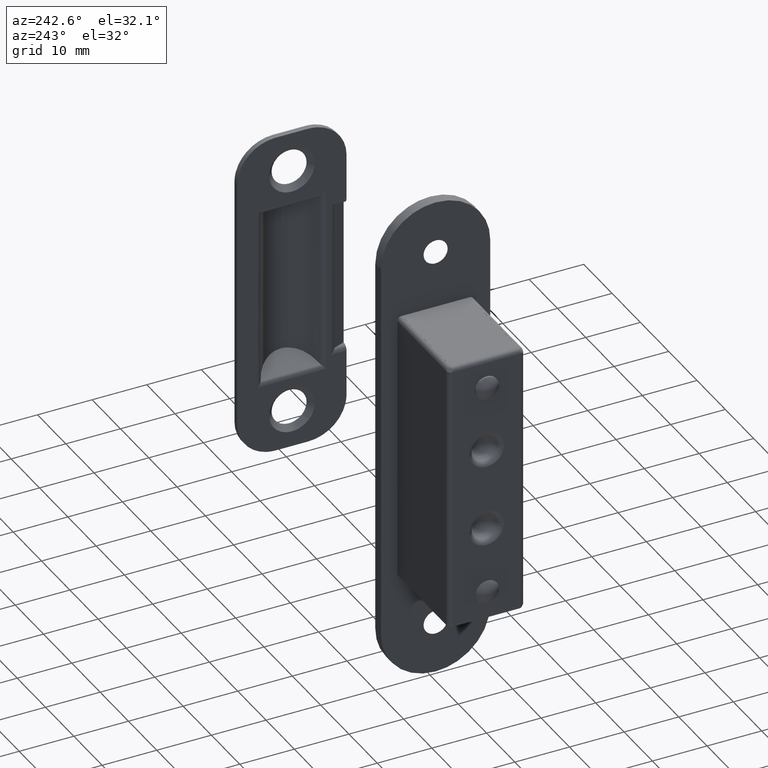
[diagram: clean part render]
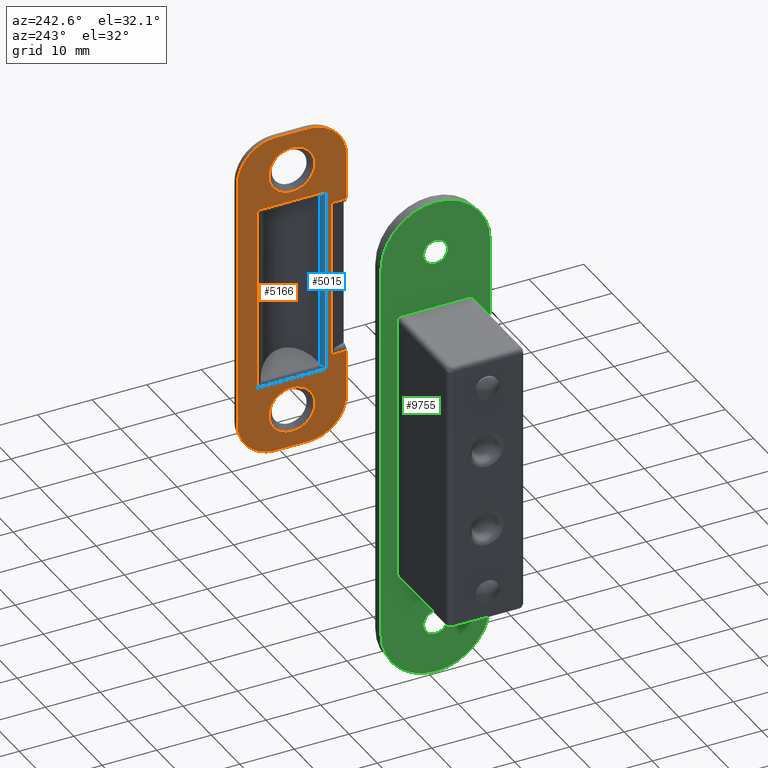
[diagram: same view with three faces highlighted in distinct colors, each labeled with its STEP entity id]
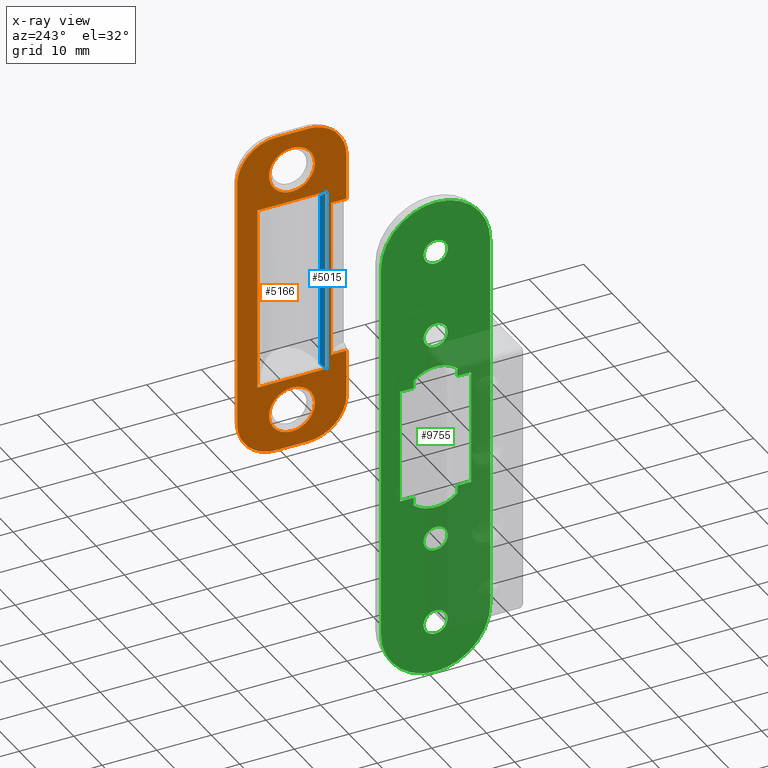
[diagram: x-ray of the same camera — body ghosted, the three highlighted faces saturated]
A machine part, auxiliary view with three faces highlighted in distinct colors.
The next image is the same camera in x-ray (body ghosted, the three faces saturated) — at least one of them is partly hidden behind the body in this view.
Their STEP definitions:

[orange] entity #5166 — the highlighted face is a freeform B-spline surface patch.
#4289=CARTESIAN_POINT('',(48.745713657531802,-4.200001150436667,-23.000000812040430));
#4290=VERTEX_POINT('',#4289);
#4291=CARTESIAN_POINT('',(48.745713530252971,-3.096566388486624,-25.837478975063540));
#4292=VERTEX_POINT('',#4291);
#4293=CARTESIAN_POINT('',(48.745713657531802,-4.200001150436667,-23.000000812040430));
#4294=CARTESIAN_POINT('',(48.745713639334511,-4.200173369354194,-23.405682132487900));
#4295=CARTESIAN_POINT('',(48.745713610954454,-4.107548693115812,-24.038367016498839));
#4296=CARTESIAN_POINT('',(48.745713567394489,-3.729958294057039,-25.009468982688610));
#4297=CARTESIAN_POINT('',(48.745713543664550,-3.370749172032806,-25.538490330784711));
#4298=CARTESIAN_POINT('',(48.745713530252971,-3.096566388486624,-25.837478975063540));
#4299=B_SPLINE_CURVE_WITH_KNOTS('',3,(#4293,#4294,#4295,#4296,#4297,#4298),.UNSPECIFIED.,.F.,.U.,(4,1,1,4),(0.000000028381102,1.216967061449153,1.898462237563208,3.115429270614877),.UNSPECIFIED.);
#4300=EDGE_CURVE('',#4290,#4292,#4299,.T.);
#4302=CARTESIAN_POINT('',(48.745713657531802,-0.000000940356988,-18.800000000000001));
#4303=VERTEX_POINT('',#4302);
#4304=CARTESIAN_POINT('',(48.745713657531802,-0.000000940356988,-18.800000000000001));
#4305=CARTESIAN_POINT('',(48.745713657531802,-0.429551941755170,-18.799772588515729));
#4306=CARTESIAN_POINT('',(48.745713657531837,-1.082253920309024,-18.901077406199182));
#4307=CARTESIAN_POINT('',(48.745713657531773,-1.976238161579904,-19.264973814131931));
#4308=CARTESIAN_POINT('',(48.745713657531773,-2.613739346222419,-19.679724342688250));
#4309=CARTESIAN_POINT('',(48.745713657531887,-3.221825447361701,-20.265806767377651));
#4310=CARTESIAN_POINT('',(48.745713657531759,-3.629896973406423,-20.845227005617460));
#4311=CARTESIAN_POINT('',(48.745713657531986,-3.968441044085298,-21.561026466700511));
#4312=CARTESIAN_POINT('',(48.745713657531297,-4.157461580715247,-22.244045169491319));
#4313=CARTESIAN_POINT('',(48.745713657532043,-4.200007708507723,-22.776655688594339));
#4314=CARTESIAN_POINT('',(48.745713657531802,-4.200001150436667,-23.000000812040430));
#4315=B_SPLINE_CURVE_WITH_KNOTS('',3,(#4304,#4305,#4306,#4307,#4308,#4309,#4310,#4311,#4312,#4313,#4314),.UNSPECIFIED.,.F.,.U.,(4,1,1,1,1,1,1,1,4),(0.000000121366242,1.288551447793266,1.958601328873229,2.886358236190552,3.556390393601752,4.484157643069922,4.999582751984454,5.927341567044582,6.597386544171943),.UNSPECIFIED.);
#4316=EDGE_CURVE('',#4303,#4290,#4315,.T.);
#4318=CARTESIAN_POINT('',(48.745713530252971,3.096564087613122,-20.162521024936471));
#4319=VERTEX_POINT('',#4318);
#4320=CARTESIAN_POINT('',(48.745713530252971,3.096564087613122,-20.162521024936471));
#4321=CARTESIAN_POINT('',(48.745713542333263,2.802657221145359,-19.841463290023089));
#4322=CARTESIAN_POINT('',(48.745713568286739,2.171245583147886,-19.337956872586741));
#4323=CARTESIAN_POINT('',(48.745713612808864,1.088064944992333,-18.894515421378539));
#4324=CARTESIAN_POINT('',(48.745713642623258,0.362709734362452,-18.799912918977199));
#4325=CARTESIAN_POINT('',(48.745713657531802,-0.000000940356988,-18.800000000000001));
#4326=B_SPLINE_CURVE_WITH_KNOTS('',3,(#4320,#4321,#4322,#4323,#4324,#4325),.UNSPECIFIED.,.F.,.U.,(4,1,1,4),(0.000000038605098,1.305734281770942,2.393839093075896,3.481956358413441),.UNSPECIFIED.);
#4327=EDGE_CURVE('',#4319,#4303,#4326,.T.);
#4398=CARTESIAN_POINT('',(48.745713657531802,-0.000001360516500,-27.199999999999999));
#4399=VERTEX_POINT('',#4398);
#4400=CARTESIAN_POINT('',(48.745713530252971,-3.096566388486624,-25.837478975063540));
#4401=CARTESIAN_POINT('',(48.745713541327483,-2.827134898154874,-26.131757603335760));
#4402=CARTESIAN_POINT('',(48.745713564048003,-2.274366445767939,-26.584403093407719));
#4403=CARTESIAN_POINT('',(48.745713607595562,-1.214902928348447,-27.075399552968459));
#4404=CARTESIAN_POINT('',(48.745713638894657,-0.453419381837504,-27.200282745509199));
#4405=CARTESIAN_POINT('',(48.745713657531802,-0.000001360516500,-27.199999999999999));
#4406=B_SPLINE_CURVE_WITH_KNOTS('',3,(#4400,#4401,#4402,#4403,#4404,#4405),.UNSPECIFIED.,.F.,.U.,(4,1,1,4),(0.000000038604426,1.196929072582694,2.121804779320549,3.481956358413445),.UNSPECIFIED.);
#4407=EDGE_CURVE('',#4292,#4399,#4406,.T.);
#4446=CARTESIAN_POINT('',(48.745713657531802,4.199998849563179,-22.999999187959631));
#4447=VERTEX_POINT('',#4446);
#4448=CARTESIAN_POINT('',(48.745713657531802,4.199998849563179,-22.999999187959631));
#4449=CARTESIAN_POINT('',(48.745713634965092,4.200424142089026,-22.496913659978489));
#4450=CARTESIAN_POINT('',(48.745713600043153,4.058328831721089,-21.718377131369039));
#4451=CARTESIAN_POINT('',(48.745713558055989,3.596975372084234,-20.782349828776180));
#4452=CARTESIAN_POINT('',(48.745713538838388,3.271979042060537,-20.353914657974681));
#4453=CARTESIAN_POINT('',(48.745713530252971,3.096564087613122,-20.162521024936471));
#4454=B_SPLINE_CURVE_WITH_KNOTS('',3,(#4448,#4449,#4450,#4451,#4452,#4453),.UNSPECIFIED.,.F.,.U.,(4,1,1,4),(0.000000028382584,1.509055084998762,2.336571942326989,3.115429270614945),.UNSPECIFIED.);
#4455=EDGE_CURVE('',#4447,#4319,#4454,.T.);
#4457=CARTESIAN_POINT('',(48.745713657531802,-0.000001360516500,-27.199999999999999));
#4458=CARTESIAN_POINT('',(48.745713657531631,0.429535729070688,-27.200197368361231));
#4459=CARTESIAN_POINT('',(48.745713657532058,1.254083573165701,-27.072389830574711));
#4460=CARTESIAN_POINT('',(48.745713657531617,2.239456716551597,-26.598972677213659));
#4461=CARTESIAN_POINT('',(48.745713657532029,2.990008910039348,-25.990490362024779));
#4462=CARTESIAN_POINT('',(48.745713657531347,3.560271960090315,-25.295716107969259));
#4463=CARTESIAN_POINT('',(48.745713657532050,4.059689835073614,-24.288348149249639));
#4464=CARTESIAN_POINT('',(48.745713657532292,4.200322296479482,-23.481101698454829));
#4465=CARTESIAN_POINT('',(48.745713657531802,4.199998849563179,-22.999999187959631));
#4466=B_SPLINE_CURVE_WITH_KNOTS('',3,(#4457,#4458,#4459,#4460,#4461,#4462,#4463,#4464,#4465),.UNSPECIFIED.,.F.,.U.,(4,1,1,1,1,1,4),(0.000000121359177,1.288551447787673,2.474024836034682,3.247187154961964,4.174888888670390,5.154209967608120,6.597386544171903),.UNSPECIFIED.);
#4467=EDGE_CURVE('',#4399,#4447,#4466,.T.);
#4490=CARTESIAN_POINT('',(48.745713785121723,2.891088954432393,26.046572080600281));
#4491=VERTEX_POINT('',#4490);
#4492=CARTESIAN_POINT('',(48.745713657531802,4.199999999999889,22.999998977879880));
#4493=VERTEX_POINT('',#4492);
#4494=CARTESIAN_POINT('',(48.745713785121723,2.891088954432393,26.046572080600281));
#4495=CARTESIAN_POINT('',(48.745713772843878,3.200313674511487,25.753401694372460));
#4496=CARTESIAN_POINT('',(48.745713751436668,3.596123709132503,25.242246618230300));
#4497=CARTESIAN_POINT('',(48.745713708080061,4.072361006468389,24.206980306026018));
#4498=CARTESIAN_POINT('',(48.745713678353432,4.200443401574208,23.497177720217088));
#4499=CARTESIAN_POINT('',(48.745713657531802,4.199999999999889,22.999998977879880));
#4500=B_SPLINE_CURVE_WITH_KNOTS('',3,(#4494,#4495,#4496,#4497,#4498,#4499),.UNSPECIFIED.,.F.,.U.,(4,1,1,4),(0.000000034734271,1.278244982115114,1.917350176993315,3.408651733151658),.UNSPECIFIED.);
#4501=EDGE_CURVE('',#4491,#4493,#4500,.T.);
#4503=CARTESIAN_POINT('',(48.745713657531802,1.421085E-014,18.800000000000001));
#4504=VERTEX_POINT('',#4503);
#4505=CARTESIAN_POINT('',(48.745713657531802,4.199999999999889,22.999998977879880));
#4506=CARTESIAN_POINT('',(48.745713657531873,4.200072816823008,22.673566629613742));
#4507=CARTESIAN_POINT('',(48.745713657531773,4.135554785604459,22.123828208636251));
#4508=CARTESIAN_POINT('',(48.745713657531830,3.859713575564230,21.271067358683450));
#4509=CARTESIAN_POINT('',(48.745713657531802,3.433093936177007,20.518015154052819));
#4510=CARTESIAN_POINT('',(48.745713657531716,2.790730614135546,19.817978476358391));
#4511=CARTESIAN_POINT('',(48.745713657532043,2.027594629377423,19.280470328621970));
#4512=CARTESIAN_POINT('',(48.745713657531063,1.082311642452161,18.895759261189021));
#4513=CARTESIAN_POINT('',(48.745713657533209,0.377983235869272,18.799865122716000));
#4514=CARTESIAN_POINT('',(48.745713657531802,1.421085E-014,18.800000000000001));
#4515=B_SPLINE_CURVE_WITH_KNOTS('',3,(#4505,#4506,#4507,#4508,#4509,#4510,#4511,#4512,#4513,#4514),.UNSPECIFIED.,.F.,.U.,(4,1,1,1,1,1,1,4),(0.000000121705640,0.979284358119831,1.649347271008165,2.680213951739625,3.556389771089231,4.484156859388950,5.463473266419232,6.597385391997102),.UNSPECIFIED.);
#4516=EDGE_CURVE('',#4493,#4504,#4515,.T.);
#4518=CARTESIAN_POINT('',(48.745713785121723,-2.891088954432347,19.953427919399740));
#4519=VERTEX_POINT('',#4518);
#4520=CARTESIAN_POINT('',(48.745713657531802,1.421085E-014,18.800000000000001));
#4521=CARTESIAN_POINT('',(48.745713674390267,-0.381999245549014,18.799870535759158));
#4522=CARTESIAN_POINT('',(48.745713701505288,-0.996403877721287,18.884446780683749));
#4523=CARTESIAN_POINT('',(48.745713745628478,-1.996205000794826,19.256021679083929));
#4524=CARTESIAN_POINT('',(48.745713770772831,-2.565953258747618,19.644567827473079));
#4525=CARTESIAN_POINT('',(48.745713785121723,-2.891088954432347,19.953427919399740));
#4526=B_SPLINE_CURVE_WITH_KNOTS('',3,(#4520,#4521,#4522,#4523,#4524,#4525),.UNSPECIFIED.,.F.,.U.,(4,1,1,4),(0.000000028210939,1.145959515956933,1.843486287773742,3.188735094356415),.UNSPECIFIED.);
#4527=EDGE_CURVE('',#4504,#4519,#4526,.T.);
#4598=CARTESIAN_POINT('',(48.745713657531802,1.421085E-014,27.199999999999999));
#4599=VERTEX_POINT('',#4598);
#4600=CARTESIAN_POINT('',(48.745713657531802,1.421085E-014,27.199999999999999));
#4601=CARTESIAN_POINT('',(48.745713673657342,0.365391105001105,27.200120710756590));
#4602=CARTESIAN_POINT('',(48.745713697840870,0.913373565064682,27.128001617318290));
#4603=CARTESIAN_POINT('',(48.745713731933897,1.685895368537088,26.866647632592489));
#4604=CARTESIAN_POINT('',(48.745713759270359,2.305311475993897,26.539136783049820));
#4605=CARTESIAN_POINT('',(48.745713777147252,2.710399261459958,26.218069631691868));
#4606=CARTESIAN_POINT('',(48.745713785121723,2.891088954432393,26.046572080600281));
#4607=B_SPLINE_CURVE_WITH_KNOTS('',3,(#4600,#4601,#4602,#4603,#4604,#4605,#4606),.UNSPECIFIED.,.F.,.U.,(4,1,1,1,4),(0.000000028211023,1.096129370451319,1.644173595179592,2.441375927823686,3.188735094356408),.UNSPECIFIED.);
#4608=EDGE_CURVE('',#4599,#4491,#4607,.T.);
#4647=CARTESIAN_POINT('',(48.745713657531802,-4.199999999999862,23.000001022120198));
#4648=VERTEX_POINT('',#4647);
#4649=CARTESIAN_POINT('',(48.745713785121723,-2.891088954432347,19.953427919399740));
#4650=CARTESIAN_POINT('',(48.745713776422868,-3.110051504718298,20.161140973323249));
#4651=CARTESIAN_POINT('',(48.745713759315692,-3.456635394827847,20.569616171098730));
#4652=CARTESIAN_POINT('',(48.745713728776288,-3.868000048082728,21.298837461702320));
#4653=CARTESIAN_POINT('',(48.745713695449822,-4.134681626818279,22.094598417268930));
#4654=CARTESIAN_POINT('',(48.745713670171547,-4.200041559832471,22.698192994576068));
#4655=CARTESIAN_POINT('',(48.745713657531802,-4.199999999999862,23.000001022120198));
#4656=B_SPLINE_CURVE_WITH_KNOTS('',3,(#4649,#4650,#4651,#4652,#4653,#4654,#4655),.UNSPECIFIED.,.F.,.U.,(4,1,1,1,4),(0.000000034735305,0.905424274202697,1.597819834155672,2.503227493653066,3.408651733151725),.UNSPECIFIED.);
#4657=EDGE_CURVE('',#4519,#4648,#4656,.T.);
#4659=CARTESIAN_POINT('',(48.745713657531802,-4.199999999999862,23.000001022120198));
#4660=CARTESIAN_POINT('',(48.745713657531773,-4.200022517167342,23.257710788864291));
#4661=CARTESIAN_POINT('',(48.745713657531887,-4.149258563582466,23.807483572695201));
#4662=CARTESIAN_POINT('',(48.745713657531603,-3.913472637629694,24.602421360705630));
#4663=CARTESIAN_POINT('',(48.745713657532072,-3.555356089196619,25.272305249298839));
#4664=CARTESIAN_POINT('',(48.745713657531752,-3.082384326048111,25.886114856004859));
#4665=CARTESIAN_POINT('',(48.745713657531773,-2.454855144354111,26.454979821855169));
#4666=CARTESIAN_POINT('',(48.745713657532129,-1.666249960787526,26.888979875710660));
#4667=CARTESIAN_POINT('',(48.745713657530970,-0.824641650156671,27.144207047938320));
#4668=CARTESIAN_POINT('',(48.745713657533152,-0.292067401951965,27.200046554569870));
#4669=CARTESIAN_POINT('',(48.745713657531802,1.421085E-014,27.199999999999999));
#4670=B_SPLINE_CURVE_WITH_KNOTS('',3,(#4659,#4660,#4661,#4662,#4663,#4664,#4665,#4666,#4667,#4668,#4669),.UNSPECIFIED.,.F.,.U.,(4,1,1,1,1,1,1,1,4),(0.000000121718191,0.773131613869071,1.649347271016413,2.474024404767386,3.040998846688024,3.968737625534508,4.999581878875382,5.721189998267675,6.597385391997082),.UNSPECIFIED.);
#4671=EDGE_CURVE('',#4648,#4599,#4670,.T.);
#4873=CARTESIAN_POINT('',(48.745713657531802,6.324555320336721,16.999977500004150));
#4874=VERTEX_POINT('',#4873);
#4888=CARTESIAN_POINT('',(48.745713657531802,6.324555320336721,-16.999969249995750));
#4889=VERTEX_POINT('',#4888);
#4890=CARTESIAN_POINT('',(48.745713657531802,6.324555320336721,-16.999969249995750));
#4891=CARTESIAN_POINT('',(48.745713657531802,6.324555320336721,16.999977500004150));
#4892=QUASI_UNIFORM_CURVE('',1,(#4890,#4891),.UNSPECIFIED.,.F.,.U.);
#4893=EDGE_CURVE('',#4889,#4874,#4892,.T.);
#4925=CARTESIAN_POINT('',(48.745713657531802,-6.324645999999730,16.999977500004150));
#4926=VERTEX_POINT('',#4925);
#4940=CARTESIAN_POINT('',(48.745713657531802,6.324555320336721,16.999977500004150));
#4941=CARTESIAN_POINT('',(48.745713657531802,-6.324645999999730,16.999977500004150));
#4942=QUASI_UNIFORM_CURVE('',1,(#4940,#4941),.UNSPECIFIED.,.F.,.U.);
#4943=EDGE_CURVE('',#4874,#4926,#4942,.T.);
#4966=CARTESIAN_POINT('',(48.745713657531802,-6.324645999999730,-16.999969249995750));
#4967=VERTEX_POINT('',#4966);
#4968=CARTESIAN_POINT('',(48.745713657531802,-6.324645999999730,-16.999969249995750));
#4969=CARTESIAN_POINT('',(48.745713657531802,6.324555320336721,-16.999969249995750));
#4970=QUASI_UNIFORM_CURVE('',1,(#4968,#4969),.UNSPECIFIED.,.F.,.U.);
#4971=EDGE_CURVE('',#4967,#4889,#4970,.T.);
#5006=CARTESIAN_POINT('',(48.745713657531802,-6.324645999999730,16.999977500004150));
#5007=CARTESIAN_POINT('',(48.745713657531802,-6.324645999999730,-16.999969249995750));
#5008=QUASI_UNIFORM_CURVE('',1,(#5006,#5007),.UNSPECIFIED.,.F.,.U.);
#5009=EDGE_CURVE('',#4926,#4967,#5008,.T.);
#5016=CARTESIAN_POINT('',(48.745713657531802,10.998999961236001,32.996999883708348));
#5017=CARTESIAN_POINT('',(48.745713657531802,-10.999000497677921,32.996999883708348));
#5018=CARTESIAN_POINT('',(48.745713657531802,10.998999961236001,-32.997001493033757));
#5019=CARTESIAN_POINT('',(48.745713657531802,-10.999000497677921,-32.997001493033757));
#5020=B_SPLINE_SURFACE_WITH_KNOTS('',1,1,((#5016,#5018),(#5017,#5019)),.UNSPECIFIED.,.F.,.F.,.U.,(2,2),(2,2),(0.0,21.998000458913921),(0.0,65.994001376742119),.UNSPECIFIED.);
#5021=CARTESIAN_POINT('',(48.745713657531802,-7.166327726252370,-14.585784000000020));
#5022=VERTEX_POINT('',#5021);
#5023=CARTESIAN_POINT('',(48.745713657531802,-7.166327726252370,14.585785000000000));
#5024=VERTEX_POINT('',#5023);
#5025=CARTESIAN_POINT('',(48.745713657531802,-7.166327726252370,-14.585784000000020));
#5026=CARTESIAN_POINT('',(48.745713657531802,-7.166327726252370,14.585785000000000));
#5027=QUASI_UNIFORM_CURVE('',1,(#5025,#5026),.UNSPECIFIED.,.F.,.U.);
#5028=EDGE_CURVE('',#5022,#5024,#5027,.T.);
#5029=ORIENTED_EDGE('',*,*,#5028,.T.);
#5030=CARTESIAN_POINT('',(48.745713657531802,-10.0,14.585785000000000));
#5031=VERTEX_POINT('',#5030);
#5032=CARTESIAN_POINT('',(48.745713657531802,-7.166327726252370,14.585785000000000));
#5033=CARTESIAN_POINT('',(48.745713657531802,-10.0,14.585785000000000));
#5034=QUASI_UNIFORM_CURVE('',1,(#5032,#5033),.UNSPECIFIED.,.F.,.U.);
#5035=EDGE_CURVE('',#5024,#5031,#5034,.T.);
#5036=ORIENTED_EDGE('',*,*,#5035,.T.);
#5037=CARTESIAN_POINT('',(48.745713657531802,-10.0,23.0));
#5038=VERTEX_POINT('',#5037);
#5039=CARTESIAN_POINT('',(48.745713657531802,-10.0,14.585785000000000));
#5040=CARTESIAN_POINT('',(48.745713657531802,-10.0,23.0));
#5041=QUASI_UNIFORM_CURVE('',1,(#5039,#5040),.UNSPECIFIED.,.F.,.U.);
#5042=EDGE_CURVE('',#5031,#5038,#5041,.T.);
#5043=ORIENTED_EDGE('',*,*,#5042,.T.);
#5044=CARTESIAN_POINT('',(48.745713657531802,-2.999999633480970,30.0));
#5045=VERTEX_POINT('',#5044);
#5046=CARTESIAN_POINT('',(48.745713657531802,-10.0,23.0));
#5047=CARTESIAN_POINT('',(48.745713657531923,-10.000026285504100,23.372245150340252));
#5048=CARTESIAN_POINT('',(48.745713657531617,-9.938186291185888,24.145365346743930));
#5049=CARTESIAN_POINT('',(48.745713657531972,-9.651922071304552,25.288408722237978));
#5050=CARTESIAN_POINT('',(48.745713657531823,-9.197643288535883,26.313100894024512));
#5051=CARTESIAN_POINT('',(48.745713657531716,-8.484619522150357,27.424195236481069));
#5052=CARTESIAN_POINT('',(48.745713657531780,-7.562982295514277,28.380464490757721));
#5053=CARTESIAN_POINT('',(48.745713657531788,-6.487497095838306,29.098829269878379));
#5054=CARTESIAN_POINT('',(48.745713657531937,-5.476085550785838,29.577243917237880));
#5055=CARTESIAN_POINT('',(48.745713657531248,-4.345788906914639,29.912538258087029));
#5056=CARTESIAN_POINT('',(48.745713657532818,-3.458146215794139,30.000061633949709));
#5057=CARTESIAN_POINT('',(48.745713657531802,-2.999999633480970,30.0));
#5058=B_SPLINE_CURVE_WITH_KNOTS('',3,(#5046,#5047,#5048,#5049,#5050,#5051,#5052,#5053,#5054,#5055,#5056,#5057),.UNSPECIFIED.,.F.,.U.,(4,1,1,1,1,1,1,1,1,4),(0.000000087150573,1.116739694285029,2.319391939251236,3.522049789303860,4.467006313271341,6.270937990758410,7.473598963308044,8.332636859153311,9.621208611243308,10.995643486706300),.UNSPECIFIED.);
#5059=EDGE_CURVE('',#5038,#5045,#5058,.T.);
#5060=ORIENTED_EDGE('',*,*,#5059,.T.);
#5061=CARTESIAN_POINT('',(48.745713657531802,2.999999999999885,30.0));
#5062=VERTEX_POINT('',#5061);
#5063=CARTESIAN_POINT('',(48.745713657531802,-2.999999633480970,30.0));
#5064=CARTESIAN_POINT('',(48.745713657531802,2.999999999999885,30.0));
#5065=QUASI_UNIFORM_CURVE('',1,(#5063,#5064),.UNSPECIFIED.,.F.,.U.);
#5066=EDGE_CURVE('',#5045,#5062,#5065,.T.);
#5067=ORIENTED_EDGE('',*,*,#5066,.T.);
#5068=CARTESIAN_POINT('',(48.745713657531802,9.999999999999890,23.0));
#5069=VERTEX_POINT('',#5068);
#5070=CARTESIAN_POINT('',(48.745713657531802,2.999999999999885,30.0));
#5071=CARTESIAN_POINT('',(48.745713657531802,3.372241221240270,30.000005236382432));
#5072=CARTESIAN_POINT('',(48.745713657531731,4.259919299298336,29.929107342601149));
#5073=CARTESIAN_POINT('',(48.745713657531951,5.564911796755126,29.567983352749980));
#5074=CARTESIAN_POINT('',(48.745713657531532,6.892979680294513,28.878920155631139));
#5075=CARTESIAN_POINT('',(48.745713657532299,7.895106142938952,28.056489034092628));
#5076=CARTESIAN_POINT('',(48.745713657531638,8.788514918244653,27.007853436010819));
#5077=CARTESIAN_POINT('',(48.745713657532043,9.391770194511047,25.958032896284230));
#5078=CARTESIAN_POINT('',(48.745713657531986,9.877452859914254,24.546164384481010));
#5079=CARTESIAN_POINT('',(48.745713657531702,10.000178288962431,23.601336262772591));
#5080=CARTESIAN_POINT('',(48.745713657531802,9.999999999999890,23.0));
#5081=B_SPLINE_CURVE_WITH_KNOTS('',3,(#5070,#5071,#5072,#5073,#5074,#5075,#5076,#5077,#5078,#5079,#5080),.UNSPECIFIED.,.F.,.U.,(4,1,1,1,1,1,1,1,4),(0.000000087218082,1.116739673339163,2.663007747314710,4.037483117681044,5.583699587142122,6.528636445816390,8.160828262984131,9.191685635440797,10.995643280128849),.UNSPECIFIED.);
#5082=EDGE_CURVE('',#5062,#5069,#5081,.T.);
#5083=ORIENTED_EDGE('',*,*,#5082,.T.);
#5084=CARTESIAN_POINT('',(48.745713657531802,9.999999999999890,-23.0));
#5085=VERTEX_POINT('',#5084);
#5086=CARTESIAN_POINT('',(48.745713657531802,9.999999999999890,23.0));
#5087=CARTESIAN_POINT('',(48.745713657531802,9.999999999999890,-23.0));
#5088=QUASI_UNIFORM_CURVE('',1,(#5086,#5087),.UNSPECIFIED.,.F.,.U.);
#5089=EDGE_CURVE('',#5069,#5085,#5088,.T.);
#5090=ORIENTED_EDGE('',*,*,#5089,.T.);
#5091=CARTESIAN_POINT('',(48.745713657531802,2.999999877826830,-30.0));
#5092=VERTEX_POINT('',#5091);
#5093=CARTESIAN_POINT('',(48.745713657531802,9.999999999999890,-23.0));
#5094=CARTESIAN_POINT('',(48.745713657531702,10.000091378529270,-23.515422438994730));
#5095=CARTESIAN_POINT('',(48.745713657532029,9.885640726350079,-24.546219788978888));
#5096=CARTESIAN_POINT('',(48.745713657531532,9.398365265350748,-25.962856913503149));
#5097=CARTESIAN_POINT('',(48.745713657532292,8.703052122386746,-27.122723179280399));
#5098=CARTESIAN_POINT('',(48.745713657531198,7.871638770802181,-28.074693875178429));
#5099=CARTESIAN_POINT('',(48.745713657532697,6.978044904011832,-28.798903067825940));
#5100=CARTESIAN_POINT('',(48.745713657531262,5.803901781169711,-29.464168735238498));
#5101=CARTESIAN_POINT('',(48.745713657532342,4.488999008527289,-29.898538740072819));
#5102=CARTESIAN_POINT('',(48.745713657531560,3.458137099729515,-30.000036337231901));
#5103=CARTESIAN_POINT('',(48.745713657531802,2.999999877826830,-30.0));
#5104=B_SPLINE_CURVE_WITH_KNOTS('',3,(#5093,#5094,#5095,#5096,#5097,#5098,#5099,#5100,#5101,#5102,#5103),.UNSPECIFIED.,.F.,.U.,(4,1,1,1,1,1,1,1,4),(0.000000087196522,1.546256103395537,3.092526695273760,4.467006257374202,5.583699622057688,6.872256578112742,7.903116744264143,9.621208490741687,10.995643348988040),.UNSPECIFIED.);
#5105=EDGE_CURVE('',#5085,#5092,#5104,.T.);
#5106=ORIENTED_EDGE('',*,*,#5105,.T.);
#5107=CARTESIAN_POINT('',(48.745713657531802,-3.000000000000115,-30.0));
#5108=VERTEX_POINT('',#5107);
#5109=CARTESIAN_POINT('',(48.745713657531802,2.999999877826830,-30.0));
#5110=CARTESIAN_POINT('',(48.745713657531802,-3.000000000000115,-30.0));
#5111=QUASI_UNIFORM_CURVE('',1,(#5109,#5110),.UNSPECIFIED.,.F.,.U.);
#5112=EDGE_CURVE('',#5092,#5108,#5111,.T.);
#5113=ORIENTED_EDGE('',*,*,#5112,.T.);
#5114=CARTESIAN_POINT('',(48.745713657531802,-10.0,-23.0));
#5115=VERTEX_POINT('',#5114);
#5116=CARTESIAN_POINT('',(48.745713657531802,-3.000000000000115,-30.0));
#5117=CARTESIAN_POINT('',(48.745713657531837,-3.429509693904674,-30.000045906199631));
#5118=CARTESIAN_POINT('',(48.745713657531716,-4.202611514423126,-29.928593567469541));
#5119=CARTESIAN_POINT('',(48.745713657531887,-5.507578104649211,-29.584795669659311));
#5120=CARTESIAN_POINT('',(48.745713657531738,-6.752082759461595,-28.977385749349320));
#5121=CARTESIAN_POINT('',(48.745713657531837,-7.852735556519762,-28.096322415242629));
#5122=CARTESIAN_POINT('',(48.745713657531617,-8.759803023383039,-27.057845019775069));
#5123=CARTESIAN_POINT('',(48.745713657532249,-9.391779050696886,-25.958032008701402));
#5124=CARTESIAN_POINT('',(48.745713657530807,-9.877434535817828,-24.546160780857690));
#5125=CARTESIAN_POINT('',(48.745713657533273,-10.000194412192990,-23.601338386645491));
#5126=CARTESIAN_POINT('',(48.745713657531802,-10.0,-23.0));
#5127=B_SPLINE_CURVE_WITH_KNOTS('',3,(#5116,#5117,#5118,#5119,#5120,#5121,#5122,#5123,#5124,#5125,#5126),.UNSPECIFIED.,.F.,.U.,(4,1,1,1,1,1,1,1,4),(0.000000087215621,1.288529352502110,2.319391895740676,4.037483117679602,5.411942825549989,6.528636445815423,8.160828262983198,9.191685635439713,10.995643280128730),.UNSPECIFIED.);
#5128=EDGE_CURVE('',#5108,#5115,#5127,.T.);
#5129=ORIENTED_EDGE('',*,*,#5128,.T.);
#5130=CARTESIAN_POINT('',(48.745713657531802,-10.0,-14.585784000000020));
#5131=VERTEX_POINT('',#5130);
#5132=CARTESIAN_POINT('',(48.745713657531802,-10.0,-23.0));
#5133=CARTESIAN_POINT('',(48.745713657531802,-10.0,-14.585784000000020));
#5134=QUASI_UNIFORM_CURVE('',1,(#5132,#5133),.UNSPECIFIED.,.F.,.U.);
#5135=EDGE_CURVE('',#5115,#5131,#5134,.T.);
#5136=ORIENTED_EDGE('',*,*,#5135,.T.);
#5137=CARTESIAN_POINT('',(48.745713657531802,-10.0,-14.585784000000020));
#5138=CARTESIAN_POINT('',(48.745713657531802,-7.166327726252370,-14.585784000000020));
#5139=QUASI_UNIFORM_CURVE('',1,(#5137,#5138),.UNSPECIFIED.,.F.,.U.);
#5140=EDGE_CURVE('',#5131,#5022,#5139,.T.);
#5141=ORIENTED_EDGE('',*,*,#5140,.T.);
#5142=EDGE_LOOP('',(#5029,#5036,#5043,#5060,#5067,#5083,#5090,#5106,#5113,#5129,#5136,#5141));
#5143=FACE_OUTER_BOUND('',#5142,.T.);
#5144=ORIENTED_EDGE('',*,*,#4971,.T.);
#5145=ORIENTED_EDGE('',*,*,#4893,.T.);
#5146=ORIENTED_EDGE('',*,*,#4943,.T.);
#5147=ORIENTED_EDGE('',*,*,#5009,.T.);
#5148=EDGE_LOOP('',(#5144,#5145,#5146,#5147));
#5149=FACE_BOUND('',#5148,.T.);
#5150=ORIENTED_EDGE('',*,*,#4516,.F.);
#5151=ORIENTED_EDGE('',*,*,#4501,.F.);
#5152=ORIENTED_EDGE('',*,*,#4608,.F.);
#5153=ORIENTED_EDGE('',*,*,#4671,.F.);
#5154=ORIENTED_EDGE('',*,*,#4657,.F.);
#5155=ORIENTED_EDGE('',*,*,#4527,.F.);
#5156=EDGE_LOOP('',(#5150,#5151,#5152,#5153,#5154,#5155));
#5157=FACE_BOUND('',#5156,.T.);
#5158=ORIENTED_EDGE('',*,*,#4467,.T.);
#5159=ORIENTED_EDGE('',*,*,#4455,.T.);
#5160=ORIENTED_EDGE('',*,*,#4327,.T.);
#5161=ORIENTED_EDGE('',*,*,#4316,.T.);
#5162=ORIENTED_EDGE('',*,*,#4300,.T.);
#5163=ORIENTED_EDGE('',*,*,#4407,.T.);
#5164=EDGE_LOOP('',(#5158,#5159,#5160,#5161,#5162,#5163));
#5165=FACE_BOUND('',#5164,.T.);
#5166=ADVANCED_FACE('',(#5143,#5149,#5157,#5165),#5020,.F.);

[blue] entity #5015 — the highlighted face is a freeform B-spline surface patch.
#4751=CARTESIAN_POINT('',(49.317142228960392,-5.421138097094481,-16.071397809519748));
#4752=VERTEX_POINT('',#4751);
#4766=CARTESIAN_POINT('',(49.317142228960392,-5.421138097094470,16.071406095242001));
#4767=VERTEX_POINT('',#4766);
#4768=CARTESIAN_POINT('',(49.317142228960392,-5.421138097094481,-16.071397809519748));
#4769=CARTESIAN_POINT('',(49.317142228960392,-5.421138097094470,16.071406095242001));
#4770=QUASI_UNIFORM_CURVE('',1,(#4768,#4769),.UNSPECIFIED.,.F.,.U.);
#4771=EDGE_CURVE('',#4752,#4767,#4770,.T.);
#4804=CARTESIAN_POINT('',(49.145713621976903,-5.524646026665940,-16.199969276661950));
#4805=VERTEX_POINT('',#4804);
#4811=CARTESIAN_POINT('',(49.145713621976903,-5.524646026665940,-16.199969276661950));
#4812=CARTESIAN_POINT('',(49.200254228601587,-5.483886522621638,-16.159063817905938));
#4813=CARTESIAN_POINT('',(49.257698010882827,-5.449205421916727,-16.115980977206011));
#4814=CARTESIAN_POINT('',(49.317142228960392,-5.421138097094481,-16.071397809519748));
#4815=B_SPLINE_CURVE_WITH_KNOTS('',3,(#4811,#4812,#4813,#4814),.UNSPECIFIED.,.F.,.U.,(4,4),(1.884928E-009,0.238293198635822),.UNSPECIFIED.);
#4816=EDGE_CURVE('',#4805,#4752,#4815,.T.);
#4829=CARTESIAN_POINT('',(49.145713728642299,-5.524645946666840,16.199977446671252));
#4830=VERTEX_POINT('',#4829);
#4831=CARTESIAN_POINT('',(49.317142228960392,-5.421138097094470,16.071406095242001));
#4832=CARTESIAN_POINT('',(49.257696876880367,-5.449202763462547,16.115990101045821));
#4833=CARTESIAN_POINT('',(49.200254303601191,-5.483889781013469,16.159072023027139));
#4834=CARTESIAN_POINT('',(49.145713728642299,-5.524645946666840,16.199977446671252));
#4835=B_SPLINE_CURVE_WITH_KNOTS('',3,(#4831,#4832,#4833,#4834),.UNSPECIFIED.,.F.,.U.,(4,4),(1.884969E-009,0.238293023854819),.UNSPECIFIED.);
#4836=EDGE_CURVE('',#4767,#4830,#4835,.T.);
#4925=CARTESIAN_POINT('',(48.745713657531802,-6.324645999999730,16.999977500004150));
#4926=VERTEX_POINT('',#4925);
#4927=CARTESIAN_POINT('',(49.145713728642320,-5.524645946666830,16.199977446671259));
#4928=CARTESIAN_POINT('',(48.745713657531802,-5.824645944444622,16.499977444449058));
#4929=CARTESIAN_POINT('',(48.745713657531802,-6.324645999999720,16.999977500004150));
#4937=(BOUNDED_CURVE()B_SPLINE_CURVE(2,(#4927,#4928,#4929),.UNSPECIFIED.,.F.,.U.)CURVE()GEOMETRIC_REPRESENTATION_ITEM()QUASI_UNIFORM_CURVE()RATIONAL_B_SPLINE_CURVE((1.0,0.894427171123919,1.0))REPRESENTATION_ITEM(''));
#4938=EDGE_CURVE('',#4830,#4926,#4937,.T.);
#4966=CARTESIAN_POINT('',(48.745713657531802,-6.324645999999730,-16.999969249995750));
#4967=VERTEX_POINT('',#4966);
#4973=CARTESIAN_POINT('',(48.745713657531802,-6.324645999999730,-16.999969249995750));
#4974=CARTESIAN_POINT('',(48.745713657531795,-5.824646027776993,-16.499969277773019));
#4975=CARTESIAN_POINT('',(49.145713621976903,-5.524646026665903,-16.199969276661928));
#4983=(BOUNDED_CURVE()B_SPLINE_CURVE(2,(#4973,#4974,#4975),.UNSPECIFIED.,.F.,.U.)CURVE()GEOMETRIC_REPRESENTATION_ITEM()QUASI_UNIFORM_CURVE()RATIONAL_B_SPLINE_CURVE((1.0,0.894427200937811,1.0))REPRESENTATION_ITEM(''));
#4984=EDGE_CURVE('',#4967,#4805,#4983,.T.);
#4989=CARTESIAN_POINT('',(48.746056332556243,-6.350822948307605,-17.849967918745751));
#4990=CARTESIAN_POINT('',(48.746056332556243,-6.350822948307605,17.871226135472899));
#4991=CARTESIAN_POINT('',(48.728065414429949,-5.663777503725274,-17.849967918745747));
#4992=CARTESIAN_POINT('',(48.728065414429949,-5.663777503725274,17.871226135472902));
#4993=CARTESIAN_POINT('',(49.363030225166710,-5.400766467488445,-17.849967918745751));
#4994=CARTESIAN_POINT('',(49.363030225166710,-5.400766467488445,17.871226135472899));
#5002=(BOUNDED_SURFACE()B_SPLINE_SURFACE(1,2,((#4989,#4991,#4993),(#4990,#4992,#4994)),.UNSPECIFIED.,.F.,.F.,.U.)B_SPLINE_SURFACE_WITH_KNOTS((2,2),(3,3),(0.0,35.721194054218643),(0.0,1.0),.UNSPECIFIED.)GEOMETRIC_REPRESENTATION_ITEM()RATIONAL_B_SPLINE_SURFACE(((1.0,0.824126188622016,1.0),(1.0,0.824126188622016,1.0)))REPRESENTATION_ITEM('')SURFACE());
#5003=ORIENTED_EDGE('',*,*,#4771,.F.);
#5004=ORIENTED_EDGE('',*,*,#4816,.F.);
#5005=ORIENTED_EDGE('',*,*,#4984,.F.);
#5006=CARTESIAN_POINT('',(48.745713657531802,-6.324645999999730,16.999977500004150));
#5007=CARTESIAN_POINT('',(48.745713657531802,-6.324645999999730,-16.999969249995750));
#5008=QUASI_UNIFORM_CURVE('',1,(#5006,#5007),.UNSPECIFIED.,.F.,.U.);
#5009=EDGE_CURVE('',#4926,#4967,#5008,.T.);
#5010=ORIENTED_EDGE('',*,*,#5009,.F.);
#5011=ORIENTED_EDGE('',*,*,#4938,.F.);
#5012=ORIENTED_EDGE('',*,*,#4836,.F.);
#5013=EDGE_LOOP('',(#5003,#5004,#5005,#5010,#5011,#5012));
#5014=FACE_OUTER_BOUND('',#5013,.T.);
#5015=ADVANCED_FACE('',(#5014),#5002,.T.);

[green] entity #9755 — the highlighted face is a freeform B-spline surface patch.
#8745=CARTESIAN_POINT('',(-2.000000173840293,1.514379707534487,-21.095823237929618));
#8746=VERTEX_POINT('',#8745);
#8747=CARTESIAN_POINT('',(-2.0,2.199999999999560,-19.499998607369289));
#8748=VERTEX_POINT('',#8747);
#8749=CARTESIAN_POINT('',(-2.000000173840293,1.514379707534487,-21.095823237929618));
#8750=CARTESIAN_POINT('',(-2.000000155720224,1.689880025933269,-20.929483988582110));
#8751=CARTESIAN_POINT('',(-2.000000116370952,1.962329343395960,-20.568264197358889));
#8752=CARTESIAN_POINT('',(-2.000000054703289,2.164070370468091,-20.002165536097401));
#8753=CARTESIAN_POINT('',(-2.000000016208255,2.200010720233633,-19.648787591694990));
#8754=CARTESIAN_POINT('',(-2.0,2.199999999999560,-19.499998607369289));
#8755=B_SPLINE_CURVE_WITH_KNOTS('',3,(#8749,#8750,#8751,#8752,#8753,#8754),.UNSPECIFIED.,.F.,.U.,(4,1,1,4),(0.000000028230779,0.725375695349219,1.339140641547441,1.785520846041182),.UNSPECIFIED.);
#8756=EDGE_CURVE('',#8746,#8748,#8755,.T.);
#8805=CARTESIAN_POINT('',(-2.000000173840291,-1.514379707534493,-17.904176762070371));
#8806=VERTEX_POINT('',#8805);
#8812=CARTESIAN_POINT('',(-2.0,4.807121E-031,-17.300000000000001));
#8813=VERTEX_POINT('',#8812);
#8814=CARTESIAN_POINT('',(-2.0,4.807121E-031,-17.300000000000001));
#8815=CARTESIAN_POINT('',(-2.000000033959685,-0.295833934735470,-17.299638230667369));
#8816=CARTESIAN_POINT('',(-2.000000097833937,-0.852263480752594,-17.414148091713720));
#8817=CARTESIAN_POINT('',(-2.000000152122669,-1.325190357129843,-17.724355580679742));
#8818=CARTESIAN_POINT('',(-2.000000173840291,-1.514379707534493,-17.904176762070371));
#8819=B_SPLINE_CURVE_WITH_KNOTS('',3,(#8814,#8815,#8816,#8817,#8818),.UNSPECIFIED.,.F.,.U.,(4,1,4),(0.000000032495757,0.887349624428494,1.670319062709951),.UNSPECIFIED.);
#8820=EDGE_CURVE('',#8813,#8806,#8819,.T.);
#8822=CARTESIAN_POINT('',(-2.0,2.199999999999560,-19.499998607369289));
#8823=CARTESIAN_POINT('',(-2.0,2.200080822113002,-19.284009578326071));
#8824=CARTESIAN_POINT('',(-1.999999999999999,2.138555163990309,-18.870088880799852));
#8825=CARTESIAN_POINT('',(-1.999999999999999,1.888975973479430,-18.325128977193462));
#8826=CARTESIAN_POINT('',(-2.000000000000002,1.555304097978765,-17.918624094622441));
#8827=CARTESIAN_POINT('',(-1.999999999999990,1.213092313554691,-17.651628030424099));
#8828=CARTESIAN_POINT('',(-2.000000000000016,0.719711204699445,-17.387735980328031));
#8829=CARTESIAN_POINT('',(-1.999999999999995,0.306059848269500,-17.299617651716339));
#8830=CARTESIAN_POINT('',(-2.0,4.807121E-031,-17.300000000000001));
#8831=B_SPLINE_CURVE_WITH_KNOTS('',3,(#8822,#8823,#8824,#8825,#8826,#8827,#8828,#8829,#8830),.UNSPECIFIED.,.F.,.U.,(4,1,1,1,1,1,4),(0.000000121207503,0.647958771222806,1.241945857996579,1.781901666582390,2.213891386008350,2.537879986399248,3.455837852611162),.UNSPECIFIED.);
#8832=EDGE_CURVE('',#8748,#8813,#8831,.T.);
#8855=CARTESIAN_POINT('',(-2.0,4.807121E-031,-21.699999999999999));
#8856=VERTEX_POINT('',#8855);
#8857=CARTESIAN_POINT('',(-2.0,4.807121E-031,-21.699999999999999));
#8858=CARTESIAN_POINT('',(-2.000000029962005,0.261008832568199,-21.700198865338290));
#8859=CARTESIAN_POINT('',(-2.000000093856555,0.817615195375033,-21.599721675627300));
#8860=CARTESIAN_POINT('',(-2.000000149233213,1.300019352565352,-21.299692356197291));
#8861=CARTESIAN_POINT('',(-2.000000173840293,1.514379707534487,-21.095823237929618));
#8862=B_SPLINE_CURVE_WITH_KNOTS('',3,(#8857,#8858,#8859,#8860,#8861),.UNSPECIFIED.,.F.,.U.,(4,1,4),(0.000000032496325,0.782969470756009,1.670319062709952),.UNSPECIFIED.);
#8863=EDGE_CURVE('',#8856,#8746,#8862,.T.);
#8865=CARTESIAN_POINT('',(-2.0,-2.199999999999559,-19.500001392630690));
#8866=VERTEX_POINT('',#8865);
#8867=CARTESIAN_POINT('',(-2.0,-2.199999999999559,-19.500001392630690));
#8868=CARTESIAN_POINT('',(-2.0,-2.200208785322753,-19.770018793113380));
#8869=CARTESIAN_POINT('',(-2.000000000000002,-2.122820741930540,-20.183804202670132));
#8870=CARTESIAN_POINT('',(-2.0,-1.854399152357167,-20.716901583140459));
#8871=CARTESIAN_POINT('',(-2.0,-1.578316430327261,-21.053327308885692));
#8872=CARTESIAN_POINT('',(-2.000000000000001,-1.187699500060547,-21.373954225331410));
#8873=CARTESIAN_POINT('',(-1.999999999999998,-0.683900738915786,-21.627550991550411));
#8874=CARTESIAN_POINT('',(-2.000000000000005,-0.233993539835300,-21.700125573091899));
#8875=CARTESIAN_POINT('',(-2.0,4.807121E-031,-21.699999999999999));
#8876=B_SPLINE_CURVE_WITH_KNOTS('',3,(#8867,#8868,#8869,#8870,#8871,#8872,#8873,#8874,#8875),.UNSPECIFIED.,.F.,.U.,(4,1,1,1,1,1,4),(0.000000121204581,0.809961341530899,1.241945857995046,1.781901666581184,2.105886275813852,2.753878635400985,3.455837852611175),.UNSPECIFIED.);
#8877=EDGE_CURVE('',#8866,#8856,#8876,.T.);
#8879=CARTESIAN_POINT('',(-2.000000173840291,-1.514379707534493,-17.904176762070371));
#8880=CARTESIAN_POINT('',(-2.000000155719949,-1.689881780972261,-18.070518560239371));
#8881=CARTESIAN_POINT('',(-2.000000121287717,-1.928221446972990,-18.386600656144640));
#8882=CARTESIAN_POINT('',(-2.000000060777232,-2.150333560733996,-18.942076778923848));
#8883=CARTESIAN_POINT('',(-2.000000022287282,-2.200075754096778,-19.295407945781751));
#8884=CARTESIAN_POINT('',(-2.0,-2.199999999999559,-19.500001392630690));
#8885=B_SPLINE_CURVE_WITH_KNOTS('',3,(#8879,#8880,#8881,#8882,#8883,#8884),.UNSPECIFIED.,.F.,.U.,(4,1,1,4),(0.000000028231562,0.725375695349502,1.171741221688018,1.785520846041168),.UNSPECIFIED.);
#8886=EDGE_CURVE('',#8806,#8866,#8885,.T.);
#8946=CARTESIAN_POINT('',(-2.0,-2.199999999999559,19.500001392630690));
#8947=VERTEX_POINT('',#8946);
#8948=CARTESIAN_POINT('',(-1.999999826583624,-1.622010524548839,20.986298808231119));
#8949=VERTEX_POINT('',#8948);
#8950=CARTESIAN_POINT('',(-2.0,-2.199999999999559,19.500001392630690));
#8951=CARTESIAN_POINT('',(-1.999999970246516,-2.200169532122989,19.755009207069619));
#8952=CARTESIAN_POINT('',(-1.999999906796170,-2.104325780136356,20.298822429570691));
#8953=CARTESIAN_POINT('',(-1.999999851420944,-1.817507349083140,20.773425929104739));
#8954=CARTESIAN_POINT('',(-1.999999826583624,-1.622010524548839,20.986298808231119));
#8955=B_SPLINE_CURVE_WITH_KNOTS('',3,(#8950,#8951,#8952,#8953,#8954),.UNSPECIFIED.,.F.,.U.,(4,1,4),(0.000000041440150,0.764972916053302,1.631918178226758),.UNSPECIFIED.);
#8956=EDGE_CURVE('',#8947,#8949,#8955,.T.);
#9003=CARTESIAN_POINT('',(-1.999999826583620,1.622010524548847,18.013701191768870));
#9004=VERTEX_POINT('',#9003);
#9010=CARTESIAN_POINT('',(-2.0,0.0,17.300000000000001));
#9011=VERTEX_POINT('',#9010);
#9012=CARTESIAN_POINT('',(-1.999999826583620,1.622010524548847,18.013701191768870));
#9013=CARTESIAN_POINT('',(-1.999999837560120,1.519344356134422,17.901629926379350));
#9014=CARTESIAN_POINT('',(-1.999999863538418,1.276362216385006,17.686225642362920));
#9015=CARTESIAN_POINT('',(-1.999999920801733,0.740762985858304,17.389887772700739));
#9016=CARTESIAN_POINT('',(-1.999999969526257,0.285029117985716,17.299701953485101));
#9017=CARTESIAN_POINT('',(-2.0,0.0,17.300000000000001));
#9018=B_SPLINE_CURVE_WITH_KNOTS('',3,(#9012,#9013,#9014,#9015,#9016,#9017),.UNSPECIFIED.,.F.,.U.,(4,1,1,4),(0.000000031281600,0.455980092723653,0.968953393828105,1.823920276881079),.UNSPECIFIED.);
#9019=EDGE_CURVE('',#9004,#9011,#9018,.T.);
#9021=CARTESIAN_POINT('',(-2.0,0.0,17.300000000000001));
#9022=CARTESIAN_POINT('',(-1.999999999999999,-0.269998956982033,17.299804040216561));
#9023=CARTESIAN_POINT('',(-2.000000000000003,-0.755828080084127,17.390588330852871));
#9024=CARTESIAN_POINT('',(-1.999999999999993,-1.404949548180646,17.758271318780150));
#9025=CARTESIAN_POINT('',(-2.000000000000017,-1.821976559665613,18.218411401951279));
#9026=CARTESIAN_POINT('',(-1.999999999999971,-2.122768705530843,18.816209365298182));
#9027=CARTESIAN_POINT('',(-2.000000000000018,-2.200257989536337,19.229979370971989));
#9028=CARTESIAN_POINT('',(-2.0,-2.199999999999559,19.500001392630690));
#9029=B_SPLINE_CURVE_WITH_KNOTS('',3,(#9021,#9022,#9023,#9024,#9025,#9026,#9027,#9028),.UNSPECIFIED.,.F.,.U.,(4,1,1,1,1,4),(0.000000119298578,0.809961708005170,1.457961173471673,2.213892389502859,2.645878053428530,3.455839422469714),.UNSPECIFIED.);
#9030=EDGE_CURVE('',#9011,#8947,#9029,.T.);
#9053=CARTESIAN_POINT('',(-2.0,0.0,21.699999999999999));
#9054=VERTEX_POINT('',#9053);
#9055=CARTESIAN_POINT('',(-1.999999826583624,-1.622010524548839,20.986298808231119));
#9056=CARTESIAN_POINT('',(-1.999999844412283,-1.455254235863404,21.168519702710011));
#9057=CARTESIAN_POINT('',(-1.999999883468507,-1.089950737740671,21.452086747071089));
#9058=CARTESIAN_POINT('',(-1.999999945156508,-0.512966088421413,21.662503366937141));
#9059=CARTESIAN_POINT('',(-1.999999983750209,-0.151988709199960,21.700012217879010));
#9060=CARTESIAN_POINT('',(-2.0,0.0,21.699999999999999));
#9061=B_SPLINE_CURVE_WITH_KNOTS('',3,(#9055,#9056,#9057,#9058,#9059,#9060),.UNSPECIFIED.,.F.,.U.,(4,1,1,4),(0.000000031281630,0.740975968767081,1.367940215523442,1.823920276881083),.UNSPECIFIED.);
#9062=EDGE_CURVE('',#8949,#9054,#9061,.T.);
#9064=CARTESIAN_POINT('',(-2.0,2.199999999999560,19.499998607369289));
#9065=VERTEX_POINT('',#9064);
#9066=CARTESIAN_POINT('',(-2.0,0.0,21.699999999999999));
#9067=CARTESIAN_POINT('',(-2.0,0.179987654312324,21.700042070289399));
#9068=CARTESIAN_POINT('',(-2.000000000000003,0.521932648134002,21.657783899022299));
#9069=CARTESIAN_POINT('',(-1.999999999999994,1.082160982050981,21.449702136149401));
#9070=CARTESIAN_POINT('',(-2.000000000000015,1.566302316554493,21.090684551866850));
#9071=CARTESIAN_POINT('',(-1.999999999999984,1.911865008009268,20.624429476564082));
#9072=CARTESIAN_POINT('',(-2.000000000000020,2.139109918092506,20.111879839735519));
#9073=CARTESIAN_POINT('',(-1.999999999999999,2.200120262512444,19.733996774596569));
#9074=CARTESIAN_POINT('',(-2.0,2.199999999999560,19.499998607369289));
#9075=B_SPLINE_CURVE_WITH_KNOTS('',3,(#9066,#9067,#9068,#9069,#9070,#9071,#9072,#9073,#9074),.UNSPECIFIED.,.F.,.U.,(4,1,1,1,1,1,4),(0.000000119298765,0.539963463051046,1.025960391700514,1.781902472751073,2.321879761992671,2.753879887141141,3.455839422469720),.UNSPECIFIED.);
#9076=EDGE_CURVE('',#9054,#9065,#9075,.T.);
#9078=CARTESIAN_POINT('',(-2.0,2.199999999999560,19.499998607369289));
#9079=CARTESIAN_POINT('',(-1.999999970246011,2.200191327104079,19.244986439478730));
#9080=CARTESIAN_POINT('',(-1.999999906796983,2.104292939878616,18.701184589751701));
#9081=CARTESIAN_POINT('',(-1.999999851420633,1.817518961401529,18.226571398124008));
#9082=CARTESIAN_POINT('',(-1.999999826583620,1.622010524548847,18.013701191768870));
#9083=B_SPLINE_CURVE_WITH_KNOTS('',3,(#9078,#9079,#9080,#9081,#9082),.UNSPECIFIED.,.F.,.U.,(4,1,4),(0.000000041440505,0.764972916053272,1.631918178226743),.UNSPECIFIED.);
#9084=EDGE_CURVE('',#9065,#9004,#9083,.T.);
#9145=CARTESIAN_POINT('',(-2.000000173840293,1.514379707534483,-37.095823237929608));
#9146=VERTEX_POINT('',#9145);
#9147=CARTESIAN_POINT('',(-2.0,2.199999999999560,-35.499998607369271));
#9148=VERTEX_POINT('',#9147);
#9149=CARTESIAN_POINT('',(-2.000000173840293,1.514379707534483,-37.095823237929608));
#9150=CARTESIAN_POINT('',(-2.000000161291345,1.635827758179367,-36.980625988495433));
#9151=CARTESIAN_POINT('',(-2.000000134714921,1.840161226200162,-36.736658726168052));
#9152=CARTESIAN_POINT('',(-2.000000076971022,2.117497891522971,-36.206579584815287));
#9153=CARTESIAN_POINT('',(-2.000000030395911,2.200276698021094,-35.779027755931942));
#9154=CARTESIAN_POINT('',(-2.0,2.199999999999560,-35.499998607369271));
#9155=B_SPLINE_CURVE_WITH_KNOTS('',3,(#9149,#9150,#9151,#9152,#9153,#9154),.UNSPECIFIED.,.F.,.U.,(4,1,1,4),(0.000000028231619,0.502180412410741,0.948553943299939,1.785520846041188),.UNSPECIFIED.);
#9156=EDGE_CURVE('',#9146,#9148,#9155,.T.);
#9205=CARTESIAN_POINT('',(-2.000000173840288,-1.514379707534493,-33.904176762070378));
#9206=VERTEX_POINT('',#9205);
#9212=CARTESIAN_POINT('',(-2.0,0.0,-33.299999999999997));
#9213=VERTEX_POINT('',#9212);
#9214=CARTESIAN_POINT('',(-2.0,0.0,-33.299999999999997));
#9215=CARTESIAN_POINT('',(-2.000000029962411,-0.261012406586647,-33.299790463786742));
#9216=CARTESIAN_POINT('',(-2.000000093854460,-0.817596892916904,-33.400319798273323));
#9217=CARTESIAN_POINT('',(-2.000000149235328,-1.300037889436589,-33.700273745740837));
#9218=CARTESIAN_POINT('',(-2.000000173840288,-1.514379707534493,-33.904176762070378));
#9219=B_SPLINE_CURVE_WITH_KNOTS('',3,(#9214,#9215,#9216,#9217,#9218),.UNSPECIFIED.,.F.,.U.,(4,1,4),(0.000000032496166,0.782969470755992,1.670319062709958),.UNSPECIFIED.);
#9220=EDGE_CURVE('',#9213,#9206,#9219,.T.);
#9222=CARTESIAN_POINT('',(-2.0,2.199999999999560,-35.499998607369271));
#9223=CARTESIAN_POINT('',(-2.000000000000001,2.200209028767513,-35.229981676349169));
#9224=CARTESIAN_POINT('',(-1.999999999999996,2.122820496679986,-34.816194598211972));
#9225=CARTESIAN_POINT('',(-2.000000000000006,1.854390564083912,-34.283114770707762));
#9226=CARTESIAN_POINT('',(-1.999999999999990,1.486352212782918,-33.834409669555669));
#9227=CARTESIAN_POINT('',(-2.000000000000009,1.000407701603846,-33.509664621987874));
#9228=CARTESIAN_POINT('',(-2.000000000000003,0.467939142141283,-33.333977896101750));
#9229=CARTESIAN_POINT('',(-1.999999999999998,0.161988622001444,-33.299967777015020));
#9230=CARTESIAN_POINT('',(-2.0,0.0,-33.299999999999997));
#9231=B_SPLINE_CURVE_WITH_KNOTS('',3,(#9222,#9223,#9224,#9225,#9226,#9227,#9228,#9229,#9230),.UNSPECIFIED.,.F.,.U.,(4,1,1,1,1,1,4),(0.000000121212568,0.809961341536110,1.241945857999117,1.781901666584409,2.537879986400451,2.969865453567881,3.455837852611093),.UNSPECIFIED.);
#9232=EDGE_CURVE('',#9148,#9213,#9231,.T.);
#9255=CARTESIAN_POINT('',(-2.0,0.0,-37.700000000000003));
#9256=VERTEX_POINT('',#9255);
#9257=CARTESIAN_POINT('',(-2.0,0.0,-37.700000000000003));
#9258=CARTESIAN_POINT('',(-2.000000029962046,0.261009158382824,-37.700201640883961));
#9259=CARTESIAN_POINT('',(-2.000000093856539,0.817615056110801,-37.599717299246947));
#9260=CARTESIAN_POINT('',(-2.000000149233252,1.300019734446263,-37.299694408923983));
#9261=CARTESIAN_POINT('',(-2.000000173840293,1.514379707534483,-37.095823237929608));
#9262=B_SPLINE_CURVE_WITH_KNOTS('',3,(#9257,#9258,#9259,#9260,#9261),.UNSPECIFIED.,.F.,.U.,(4,1,4),(0.000000032495289,0.782969470755625,1.670319062709944),.UNSPECIFIED.);
#9263=EDGE_CURVE('',#9256,#9146,#9262,.T.);
#9265=CARTESIAN_POINT('',(-2.0,-2.199999999999559,-35.500001392630693));
#9266=VERTEX_POINT('',#9265);
#9267=CARTESIAN_POINT('',(-2.0,-2.199999999999559,-35.500001392630693));
#9268=CARTESIAN_POINT('',(-2.0,-2.200033554874212,-35.679985112238811));
#9269=CARTESIAN_POINT('',(-1.999999999999999,-2.153392627771959,-36.057958801775953));
#9270=CARTESIAN_POINT('',(-2.000000000000002,-1.957814799360244,-36.547035501720060));
#9271=CARTESIAN_POINT('',(-1.999999999999999,-1.676590894148507,-36.946248780597323));
#9272=CARTESIAN_POINT('',(-1.999999999999998,-1.362239133719722,-37.245541539610151));
#9273=CARTESIAN_POINT('',(-2.000000000000008,-0.995529815267085,-37.477765164347034));
#9274=CARTESIAN_POINT('',(-2.000000000000005,-0.539929162695716,-37.653507822879412));
#9275=CARTESIAN_POINT('',(-1.999999999999973,-0.197988100684373,-37.700069116443537));
#9276=CARTESIAN_POINT('',(-2.0,0.0,-37.700000000000003));
#9277=B_SPLINE_CURVE_WITH_KNOTS('',3,(#9267,#9268,#9269,#9270,#9271,#9272,#9273,#9274,#9275,#9276),.UNSPECIFIED.,.F.,.U.,(4,1,1,1,1,1,1,4),(0.000000121199247,0.539963219548063,1.133959037633598,1.565956622179843,1.997877494705601,2.429878201701688,2.861878130587603,3.455837852611242),.UNSPECIFIED.);
#9278=EDGE_CURVE('',#9266,#9256,#9277,.T.);
#9280=CARTESIAN_POINT('',(-2.000000173840288,-1.514379707534493,-33.904176762070378));
#9281=CARTESIAN_POINT('',(-2.000000158504479,-1.662839937776307,-34.044956968375253));
#9282=CARTESIAN_POINT('',(-2.000000124878381,-1.908291992997974,-34.353638995426913));
#9283=CARTESIAN_POINT('',(-2.000000064830043,-2.145140083981227,-34.904872610331360));
#9284=CARTESIAN_POINT('',(-2.000000022287399,-2.200068151942622,-35.295406855676283));
#9285=CARTESIAN_POINT('',(-2.0,-2.199999999999559,-35.500001392630693));
#9286=B_SPLINE_CURVE_WITH_KNOTS('',3,(#9280,#9281,#9282,#9283,#9284,#9285),.UNSPECIFIED.,.F.,.U.,(4,1,1,4),(0.000000028229846,0.613779652527042,1.171741221687642,1.785520846041163),.UNSPECIFIED.);
#9287=EDGE_CURVE('',#9206,#9266,#9286,.T.);
#9347=CARTESIAN_POINT('',(-2.0,-2.199999999999559,35.500001392630693));
#9348=VERTEX_POINT('',#9347);
#9349=CARTESIAN_POINT('',(-1.999999826583621,-1.622010524548840,36.986298808231112));
#9350=VERTEX_POINT('',#9349);
#9351=CARTESIAN_POINT('',(-2.0,-2.199999999999559,35.500001392630693));
#9352=CARTESIAN_POINT('',(-1.999999982150001,-2.200010021575278,35.652988181264057));
#9353=CARTESIAN_POINT('',(-1.999999940497276,-2.162679260544277,36.009980668508270));
#9354=CARTESIAN_POINT('',(-1.999999880251364,-1.975518971040745,36.526329572397493));
#9355=CARTESIAN_POINT('',(-1.999999842665348,-1.748373688599865,36.848467375473099));
#9356=CARTESIAN_POINT('',(-1.999999826583621,-1.622010524548840,36.986298808231112));
#9357=B_SPLINE_CURVE_WITH_KNOTS('',3,(#9351,#9352,#9353,#9354,#9355,#9356),.UNSPECIFIED.,.F.,.U.,(4,1,1,4),(0.000000041440797,0.458979608140512,1.070944534969998,1.631918178226758),.UNSPECIFIED.);
#9358=EDGE_CURVE('',#9348,#9350,#9357,.T.);
#9405=CARTESIAN_POINT('',(-1.999999826583617,1.622010524548851,34.013701191768867));
#9406=VERTEX_POINT('',#9405);
#9412=CARTESIAN_POINT('',(-2.0,0.0,33.299999999999997));
#9413=VERTEX_POINT('',#9412);
#9414=CARTESIAN_POINT('',(-1.999999826583617,1.622010524548851,34.013701191768867));
#9415=CARTESIAN_POINT('',(-1.999999844412361,1.455253472079740,33.831479728770113));
#9416=CARTESIAN_POINT('',(-1.999999883468488,1.089950882166423,33.547913453971972));
#9417=CARTESIAN_POINT('',(-1.999999945156442,0.512966606477438,33.337497234717382));
#9418=CARTESIAN_POINT('',(-1.999999983750253,0.151988387839189,33.299986649190402));
#9419=CARTESIAN_POINT('',(-2.0,0.0,33.299999999999997));
#9420=B_SPLINE_CURVE_WITH_KNOTS('',3,(#9414,#9415,#9416,#9417,#9418,#9419),.UNSPECIFIED.,.F.,.U.,(4,1,1,4),(0.000000031281706,0.740975968767142,1.367940215523436,1.823920276881079),.UNSPECIFIED.);
#9421=EDGE_CURVE('',#9406,#9413,#9420,.T.);
#9423=CARTESIAN_POINT('',(-2.0,0.0,33.299999999999997));
#9424=CARTESIAN_POINT('',(-1.999999999999999,-0.179987109813798,33.299958359727498));
#9425=CARTESIAN_POINT('',(-2.000000000000002,-0.521943569972409,33.342200287476523));
#9426=CARTESIAN_POINT('',(-1.999999999999996,-0.980257866355898,33.512552691504517));
#9427=CARTESIAN_POINT('',(-2.000000000000017,-1.362235788183922,33.754457268416672));
#9428=CARTESIAN_POINT('',(-1.999999999999953,-1.676598194406316,34.053754514379548));
#9429=CARTESIAN_POINT('',(-2.000000000000049,-1.926520184022751,34.408622224524763));
#9430=CARTESIAN_POINT('',(-1.999999999999950,-2.139119884293760,34.888115404794078));
#9431=CARTESIAN_POINT('',(-2.000000000000008,-2.200117177942170,35.266003839568789));
#9432=CARTESIAN_POINT('',(-2.0,-2.199999999999559,35.500001392630693));
#9433=B_SPLINE_CURVE_WITH_KNOTS('',3,(#9423,#9424,#9425,#9426,#9427,#9428,#9429,#9430,#9431,#9432),.UNSPECIFIED.,.F.,.U.,(4,1,1,1,1,1,1,4),(0.000000119296394,0.539963463048875,1.025960391698507,1.457961173470179,1.889881966923625,2.321879761991825,2.753879887140680,3.455839422469711),.UNSPECIFIED.);
#9434=EDGE_CURVE('',#9413,#9348,#9433,.T.);
#9457=CARTESIAN_POINT('',(-2.0,0.0,37.700000000000003));
#9458=VERTEX_POINT('',#9457);
#9459=CARTESIAN_POINT('',(-1.999999826583621,-1.622010524548840,36.986298808231112));
#9460=CARTESIAN_POINT('',(-1.999999841672926,-1.480876149588227,37.140441576316043));
#9461=CARTESIAN_POINT('',(-1.999999871835436,-1.198758004158997,37.371462169377423));
#9462=CARTESIAN_POINT('',(-1.999999930948563,-0.645856865141451,37.632073261277789));
#9463=CARTESIAN_POINT('',(-1.999999973591156,-0.247009101075489,37.700160171708838));
#9464=CARTESIAN_POINT('',(-2.0,0.0,37.700000000000003));
#9465=B_SPLINE_CURVE_WITH_KNOTS('',3,(#9459,#9460,#9461,#9462,#9463,#9464),.UNSPECIFIED.,.F.,.U.,(4,1,1,4),(0.000000031281864,0.626979908511655,1.082944339403149,1.823920276881089),.UNSPECIFIED.);
#9466=EDGE_CURVE('',#9350,#9458,#9465,.T.);
#9468=CARTESIAN_POINT('',(-2.0,2.199999999999560,35.499998607369271));
#9469=VERTEX_POINT('',#9468);
#9470=CARTESIAN_POINT('',(-2.0,0.0,37.700000000000003));
#9471=CARTESIAN_POINT('',(-2.000000000000001,0.270016987398123,37.700208100933438));
#9472=CARTESIAN_POINT('',(-1.999999999999998,0.683808706360834,37.622831329236817));
#9473=CARTESIAN_POINT('',(-2.000000000000002,1.184587437627233,37.370640772879732));
#9474=CARTESIAN_POINT('',(-2.0,1.555300305803810,37.081368203350813));
#9475=CARTESIAN_POINT('',(-1.999999999999998,1.854415158383631,36.716906961408597));
#9476=CARTESIAN_POINT('',(-2.000000000000002,2.122793649241052,36.183794011900957));
#9477=CARTESIAN_POINT('',(-2.000000000000003,2.200233227035796,35.770022551840242));
#9478=CARTESIAN_POINT('',(-2.0,2.199999999999560,35.499998607369271));
#9479=B_SPLINE_CURVE_WITH_KNOTS('',3,(#9470,#9471,#9472,#9473,#9474,#9475,#9476,#9477,#9478),.UNSPECIFIED.,.F.,.U.,(4,1,1,1,1,1,4),(0.000000119299709,0.809961708006153,1.241946420008451,1.673936875818204,2.213892389503268,2.645878053428574,3.455839422469728),.UNSPECIFIED.);
#9480=EDGE_CURVE('',#9458,#9469,#9479,.T.);
#9482=CARTESIAN_POINT('',(-2.0,2.199999999999560,35.499998607369271));
#9483=CARTESIAN_POINT('',(-1.999999970246487,2.200183472841284,35.244990524951028));
#9484=CARTESIAN_POINT('',(-1.999999906794932,2.104326397547114,34.701167067084150));
#9485=CARTESIAN_POINT('',(-1.999999851422518,1.817491578140458,34.226587563294380));
#9486=CARTESIAN_POINT('',(-1.999999826583617,1.622010524548851,34.013701191768867));
#9487=B_SPLINE_CURVE_WITH_KNOTS('',3,(#9482,#9483,#9484,#9485,#9486),.UNSPECIFIED.,.F.,.U.,(4,1,4),(0.000000041439702,0.764972916053009,1.631918178226732),.UNSPECIFIED.);
#9488=EDGE_CURVE('',#9469,#9406,#9487,.T.);
#9531=CARTESIAN_POINT('',(-2.0,-10.998999211986030,49.495495699722078));
#9532=CARTESIAN_POINT('',(-2.0,10.998984748427540,49.495495699722078));
#9533=CARTESIAN_POINT('',(-2.0,-10.998999211986030,-49.495498114874913));
#9534=CARTESIAN_POINT('',(-2.0,10.998984748427540,-49.495498114874913));
#9535=B_SPLINE_SURFACE_WITH_KNOTS('',1,1,((#9531,#9533),(#9532,#9534)),.UNSPECIFIED.,.F.,.F.,.U.,(2,2),(2,2),(0.0,21.997983960413581),(0.0,98.990993814596976),.UNSPECIFIED.);
#9536=CARTESIAN_POINT('',(-2.0,-0.008661590242198,44.999996248842017));
#9537=VERTEX_POINT('',#9536);
#9538=CARTESIAN_POINT('',(-2.0,-9.999999999999890,35.0));
#9539=VERTEX_POINT('',#9538);
#9540=CARTESIAN_POINT('',(-2.0,-0.008661590242198,44.999996248842017));
#9541=CARTESIAN_POINT('',(-2.000000000000001,-0.621908309173397,44.999500353884983));
#9542=CARTESIAN_POINT('',(-1.999999999999998,-1.970973048915125,44.873894924409427));
#9543=CARTESIAN_POINT('',(-2.000000000000004,-3.663166908418486,44.359294643430587));
#9544=CARTESIAN_POINT('',(-1.999999999999994,-5.126162860799038,43.621611137458281));
#9545=CARTESIAN_POINT('',(-2.000000000000007,-6.477881640595325,42.693315219848138));
#9546=CARTESIAN_POINT('',(-1.999999999999994,-7.640786806900155,41.529431023945193));
#9547=CARTESIAN_POINT('',(-1.999999999999997,-8.725179369256226,39.988526326433792));
#9548=CARTESIAN_POINT('',(-2.000000000000012,-9.463487066570819,38.426663964329570));
#9549=CARTESIAN_POINT('',(-1.999999999999985,-9.911796807266502,36.635328488684500));
#9550=CARTESIAN_POINT('',(-2.000000000000006,-10.000029646499829,35.531483870169289));
#9551=CARTESIAN_POINT('',(-2.0,-9.999999999999890,35.0));
#9552=B_SPLINE_CURVE_WITH_KNOTS('',3,(#9540,#9541,#9542,#9543,#9544,#9545,#9546,#9547,#9548,#9549,#9550,#9551),.UNSPECIFIED.,.F.,.U.,(4,1,1,1,1,1,1,1,1,4),(0.000000034874772,1.839761554627438,4.047503156902144,5.274032659537413,6.745866776699314,8.953533556360439,10.180062949476500,12.387809437961140,14.104941664928310,15.699400074478721),.UNSPECIFIED.);
#9553=EDGE_CURVE('',#9537,#9539,#9552,.T.);
#9554=ORIENTED_EDGE('',*,*,#9553,.F.);
#9555=CARTESIAN_POINT('',(-2.0,9.999984999999999,35.017320501624148));
#9556=VERTEX_POINT('',#9555);
#9557=CARTESIAN_POINT('',(-2.0,9.999984999999999,35.017320501624148));
#9558=CARTESIAN_POINT('',(-1.999999999999999,9.998690571394892,35.957680720178253));
#9559=CARTESIAN_POINT('',(-2.000000000000003,9.780764932709316,37.469787560566253));
#9560=CARTESIAN_POINT('',(-2.0,9.054102636670930,39.344616226145497));
#9561=CARTESIAN_POINT('',(-2.000000000000001,8.309128953795904,40.618590451747451));
#9562=CARTESIAN_POINT('',(-1.999999999999998,7.450832426912287,41.715311928033138));
#9563=CARTESIAN_POINT('',(-2.000000000000012,6.393247174074412,42.744627319689613));
#9564=CARTESIAN_POINT('',(-1.999999999999971,5.117312873700922,43.640959410921170));
#9565=CARTESIAN_POINT('',(-2.000000000000029,3.790289969816878,44.286743501090037));
#9566=CARTESIAN_POINT('',(-1.999999999999953,2.117314112640289,44.837597586182198));
#9567=CARTESIAN_POINT('',(-2.000000000000047,0.849918316659252,45.000978931147770));
#9568=CARTESIAN_POINT('',(-2.0,-0.008661590242198,44.999996248842017));
#9569=B_SPLINE_CURVE_WITH_KNOTS('',3,(#9557,#9558,#9559,#9560,#9561,#9562,#9563,#9564,#9565,#9566,#9567,#9568),.UNSPECIFIED.,.F.,.U.,(4,1,1,1,1,1,1,1,1,4),(0.000000034867996,2.820978736839866,4.538109280612758,6.009929009261544,7.236472920557533,8.708229365895631,10.425369282689701,11.897205110289130,13.123734851491349,15.699402746895400),.UNSPECIFIED.);
#9570=EDGE_CURVE('',#9556,#9537,#9569,.T.);
#9571=ORIENTED_EDGE('',*,*,#9570,.F.);
#9572=CARTESIAN_POINT('',(-2.0,9.999984999999999,-34.982679498375752));
#9573=VERTEX_POINT('',#9572);
#9574=CARTESIAN_POINT('',(-2.0,9.999984999999999,-34.982679498375752));
#9575=CARTESIAN_POINT('',(-2.0,9.999984999999999,35.017320501624148));
#9576=QUASI_UNIFORM_CURVE('',1,(#9574,#9575),.UNSPECIFIED.,.F.,.U.);
#9577=EDGE_CURVE('',#9573,#9556,#9576,.T.);
#9578=ORIENTED_EDGE('',*,*,#9577,.F.);
#9579=CARTESIAN_POINT('',(-2.0,0.008660245230390,-44.999996250006937));
#9580=VERTEX_POINT('',#9579);
#9581=CARTESIAN_POINT('',(-2.0,0.008660245230390,-44.999996250006937));
#9582=CARTESIAN_POINT('',(-2.000000000000008,0.909128256514191,-44.999552832520877));
#9583=CARTESIAN_POINT('',(-1.999999999999985,2.423117510689157,-44.791883532158117));
#9584=CARTESIAN_POINT('',(-2.000000000000019,4.459564646002665,-44.018196861831271));
#9585=CARTESIAN_POINT('',(-1.999999999999995,5.894049702440257,-43.131927940419843));
#9586=CARTESIAN_POINT('',(-1.999999999999990,7.134682440323763,-42.058976314470883));
#9587=CARTESIAN_POINT('',(-2.000000000000009,8.259982436979502,-40.751074984431469));
#9588=CARTESIAN_POINT('',(-1.999999999999996,9.170999224728483,-39.137440169561778));
#9589=CARTESIAN_POINT('',(-2.000000000000001,9.836908239623282,-37.152088642228222));
#9590=CARTESIAN_POINT('',(-2.0,10.001623892103879,-35.801271130858503));
#9591=CARTESIAN_POINT('',(-2.0,9.999984999999999,-34.982679498375752));
#9592=B_SPLINE_CURVE_WITH_KNOTS('',3,(#9581,#9582,#9583,#9584,#9585,#9586,#9587,#9588,#9589,#9590,#9591),.UNSPECIFIED.,.F.,.U.,(4,1,1,1,1,1,1,1,4),(0.000000019543435,2.701300523106253,4.543115978761779,6.507730462067581,7.735583431721687,9.454579895795384,11.664754793220141,13.260993632914380,15.716722255825429),.UNSPECIFIED.);
#9593=EDGE_CURVE('',#9580,#9573,#9592,.T.);
#9594=ORIENTED_EDGE('',*,*,#9593,.F.);
#9595=CARTESIAN_POINT('',(-2.0,-9.999999999999890,-35.0));
#9596=VERTEX_POINT('',#9595);
#9597=CARTESIAN_POINT('',(-2.0,-9.999999999999890,-35.0));
#9598=CARTESIAN_POINT('',(-1.999999999999998,-10.000108839882390,-35.736714503118613));
#9599=CARTESIAN_POINT('',(-2.000000000000005,-9.831978748150851,-37.251057199801423));
#9600=CARTESIAN_POINT('',(-1.999999999999994,-9.135771820638166,-39.233973032010347));
#9601=CARTESIAN_POINT('',(-2.000000000000007,-8.184794881552518,-40.819251266844162));
#9602=CARTESIAN_POINT('',(-1.999999999999983,-7.127403042915260,-42.074944794807713));
#9603=CARTESIAN_POINT('',(-2.000000000000022,-6.007130849354889,-43.040365315074553));
#9604=CARTESIAN_POINT('',(-1.999999999999956,-4.759491661916286,-43.829422940186980));
#9605=CARTESIAN_POINT('',(-2.000000000000024,-3.378555997953318,-44.460961512919461));
#9606=CARTESIAN_POINT('',(-1.999999999999988,-1.751344855641274,-44.899251262013237));
#9607=CARTESIAN_POINT('',(-2.000000000000002,-0.564335333220206,-45.000533126994618));
#9608=CARTESIAN_POINT('',(-2.0,0.008660245230390,-44.999996250006937));
#9609=B_SPLINE_CURVE_WITH_KNOTS('',3,(#9597,#9598,#9599,#9600,#9601,#9602,#9603,#9604,#9605,#9606,#9607,#9608),.UNSPECIFIED.,.F.,.U.,(4,1,1,1,1,1,1,1,1,4),(0.000000019537968,2.210146226308872,4.543115973654439,6.262146298937996,7.735583423027920,9.454579885170766,10.682450359399271,12.155907385272320,13.997729632300761,15.716722238166250),.UNSPECIFIED.);
#9610=EDGE_CURVE('',#9596,#9580,#9609,.T.);
#9611=ORIENTED_EDGE('',*,*,#9610,.F.);
#9612=CARTESIAN_POINT('',(-2.0,-9.999999999999890,35.0));
#9613=CARTESIAN_POINT('',(-2.0,-9.999999999999890,-35.0));
#9614=QUASI_UNIFORM_CURVE('',1,(#9612,#9613),.UNSPECIFIED.,.F.,.U.);
#9615=EDGE_CURVE('',#9539,#9596,#9614,.T.);
#9616=ORIENTED_EDGE('',*,*,#9615,.F.);
#9617=EDGE_LOOP('',(#9554,#9571,#9578,#9594,#9611,#9616));
#9618=FACE_OUTER_BOUND('',#9617,.T.);
#9619=CARTESIAN_POINT('',(-2.0,4.0,11.972135954999580));
#9620=VERTEX_POINT('',#9619);
#9621=CARTESIAN_POINT('',(-2.0,-4.0,11.972135954999580));
#9622=VERTEX_POINT('',#9621);
#9623=CARTESIAN_POINT('',(-2.0,4.0,11.972135954999580));
#9624=CARTESIAN_POINT('',(-2.000000000000004,3.711084120629942,12.230617084426850));
#9625=CARTESIAN_POINT('',(-1.999999999999998,3.156788091763108,12.637043429382150));
#9626=CARTESIAN_POINT('',(-2.000000000000001,2.174160081956440,13.126120454819960));
#9627=CARTESIAN_POINT('',(-2.000000000000007,1.206193084149268,13.409756435810470));
#9628=CARTESIAN_POINT('',(-1.999999999999972,0.183218417353855,13.520966420783180));
#9629=CARTESIAN_POINT('',(-2.000000000000032,-0.708034201314652,13.480274402794359));
#9630=CARTESIAN_POINT('',(-1.999999999999963,-1.762253047564062,13.273439357133279));
#9631=CARTESIAN_POINT('',(-2.000000000000012,-2.891810758453170,12.819686047506011));
#9632=CARTESIAN_POINT('',(-1.999999999999997,-3.660107850108759,12.276240694655030));
#9633=CARTESIAN_POINT('',(-2.0,-4.0,11.972135954999580));
#9634=B_SPLINE_CURVE_WITH_KNOTS('',3,(#9623,#9624,#9625,#9626,#9627,#9628,#9629,#9630,#9631,#9632,#9633),.UNSPECIFIED.,.F.,.U.,(4,1,1,1,1,1,1,1,4),(0.000000092102418,1.162994546408131,2.052370342989804,3.283799356354879,4.173161395055309,5.130899442782850,5.951862022306033,7.388547741555676,8.756779306742384),.UNSPECIFIED.);
#9635=EDGE_CURVE('',#9620,#9622,#9634,.T.);
#9636=ORIENTED_EDGE('',*,*,#9635,.T.);
#9637=CARTESIAN_POINT('',(-2.0,-4.0,10.500000000000000));
#9638=VERTEX_POINT('',#9637);
#9639=CARTESIAN_POINT('',(-2.0,-4.0,10.500000000000000));
#9640=CARTESIAN_POINT('',(-2.0,-4.0,11.972135954999580));
#9641=QUASI_UNIFORM_CURVE('',1,(#9639,#9640),.UNSPECIFIED.,.F.,.U.);
#9642=EDGE_CURVE('',#9638,#9622,#9641,.T.);
#9643=ORIENTED_EDGE('',*,*,#9642,.F.);
#9644=CARTESIAN_POINT('',(-2.0,-6.500000000000000,10.500000000000000));
#9645=VERTEX_POINT('',#9644);
#9646=CARTESIAN_POINT('',(-2.0,-6.500000000000000,10.500000000000000));
#9647=CARTESIAN_POINT('',(-2.0,-4.0,10.500000000000000));
#9648=QUASI_UNIFORM_CURVE('',1,(#9646,#9647),.UNSPECIFIED.,.F.,.U.);
#9649=EDGE_CURVE('',#9645,#9638,#9648,.T.);
#9650=ORIENTED_EDGE('',*,*,#9649,.F.);
#9651=CARTESIAN_POINT('',(-2.0,-6.500000000000000,-10.500000000000000));
#9652=VERTEX_POINT('',#9651);
#9653=CARTESIAN_POINT('',(-2.0,-6.500000000000000,-10.500000000000000));
#9654=CARTESIAN_POINT('',(-2.0,-6.500000000000000,10.500000000000000));
#9655=QUASI_UNIFORM_CURVE('',1,(#9653,#9654),.UNSPECIFIED.,.F.,.U.);
#9656=EDGE_CURVE('',#9652,#9645,#9655,.T.);
#9657=ORIENTED_EDGE('',*,*,#9656,.F.);
#9658=CARTESIAN_POINT('',(-2.0,-4.0,-10.500000000000000));
#9659=VERTEX_POINT('',#9658);
#9660=CARTESIAN_POINT('',(-2.0,-4.0,-10.500000000000000));
#9661=CARTESIAN_POINT('',(-2.0,-6.500000000000000,-10.500000000000000));
#9662=QUASI_UNIFORM_CURVE('',1,(#9660,#9661),.UNSPECIFIED.,.F.,.U.);
#9663=EDGE_CURVE('',#9659,#9652,#9662,.T.);
#9664=ORIENTED_EDGE('',*,*,#9663,.F.);
#9665=CARTESIAN_POINT('',(-2.0,-4.0,-11.972135954999580));
#9666=VERTEX_POINT('',#9665);
#9667=CARTESIAN_POINT('',(-2.0,-4.0,-11.972135954999580));
#9668=CARTESIAN_POINT('',(-2.0,-4.0,-10.500000000000000));
#9669=QUASI_UNIFORM_CURVE('',1,(#9667,#9668),.UNSPECIFIED.,.F.,.U.);
#9670=EDGE_CURVE('',#9666,#9659,#9669,.T.);
#9671=ORIENTED_EDGE('',*,*,#9670,.F.);
#9672=CARTESIAN_POINT('',(-2.0,4.0,-11.972137000000020));
#9673=VERTEX_POINT('',#9672);
#9674=CARTESIAN_POINT('',(-2.0,-4.0,-11.972135954999580));
#9675=CARTESIAN_POINT('',(-2.000000000000001,-3.762055611678258,-12.184981566773370));
#9676=CARTESIAN_POINT('',(-1.999999999999999,-3.215657331484715,-12.600266117310159));
#9677=CARTESIAN_POINT('',(-1.999999999999997,-2.280810038663014,-13.085672318199251));
#9678=CARTESIAN_POINT('',(-1.999999999999992,-1.251480902798824,-13.400061143812129));
#9679=CARTESIAN_POINT('',(-2.000000000000010,-0.138022352913014,-13.534029318502450));
#9680=CARTESIAN_POINT('',(-2.000000000000002,0.868271239038440,-13.465070550403730));
#9681=CARTESIAN_POINT('',(-2.000000000000011,1.846283825971365,-13.232177759383880));
#9682=CARTESIAN_POINT('',(-1.999999999999996,2.886975056544703,-12.814193997944971));
#9683=CARTESIAN_POINT('',(-1.999999999999999,3.609169453873631,-12.321933516541000));
#9684=CARTESIAN_POINT('',(-2.0,4.0,-11.972137000000020));
#9685=B_SPLINE_CURVE_WITH_KNOTS('',3,(#9674,#9675,#9676,#9677,#9678,#9679,#9680,#9681,#9682,#9683,#9684),.UNSPECIFIED.,.F.,.U.,(4,1,1,1,1,1,1,1,4),(0.000000092101853,0.957755305803742,2.052370224909008,3.146980720849840,4.173161154949208,5.404562587623282,6.157102466982084,7.183306572219371,8.756778802932120),.UNSPECIFIED.);
#9686=EDGE_CURVE('',#9666,#9673,#9685,.T.);
#9687=ORIENTED_EDGE('',*,*,#9686,.T.);
#9688=CARTESIAN_POINT('',(-2.0,4.0,-10.500000000000000));
#9689=VERTEX_POINT('',#9688);
#9690=CARTESIAN_POINT('',(-2.0,4.0,-10.500000000000000));
#9691=CARTESIAN_POINT('',(-2.0,4.0,-11.972137000000020));
#9692=QUASI_UNIFORM_CURVE('',1,(#9690,#9691),.UNSPECIFIED.,.F.,.U.);
#9693=EDGE_CURVE('',#9689,#9673,#9692,.T.);
#9694=ORIENTED_EDGE('',*,*,#9693,.F.);
#9695=CARTESIAN_POINT('',(-2.0,6.500000000000000,-10.500000000000000));
#9696=VERTEX_POINT('',#9695);
#9697=CARTESIAN_POINT('',(-2.0,6.500000000000000,-10.500000000000000));
#9698=CARTESIAN_POINT('',(-2.0,4.0,-10.500000000000000));
#9699=QUASI_UNIFORM_CURVE('',1,(#9697,#9698),.UNSPECIFIED.,.F.,.U.);
#9700=EDGE_CURVE('',#9696,#9689,#9699,.T.);
#9701=ORIENTED_EDGE('',*,*,#9700,.F.);
#9702=CARTESIAN_POINT('',(-2.0,6.500000000000000,10.500000000000000));
#9703=VERTEX_POINT('',#9702);
#9704=CARTESIAN_POINT('',(-2.0,6.500000000000000,10.500000000000000));
#9705=CARTESIAN_POINT('',(-2.0,6.500000000000000,-10.500000000000000));
#9706=QUASI_UNIFORM_CURVE('',1,(#9704,#9705),.UNSPECIFIED.,.F.,.U.);
#9707=EDGE_CURVE('',#9703,#9696,#9706,.T.);
#9708=ORIENTED_EDGE('',*,*,#9707,.F.);
#9709=CARTESIAN_POINT('',(-2.0,4.0,10.500000000000000));
#9710=VERTEX_POINT('',#9709);
#9711=CARTESIAN_POINT('',(-2.0,4.0,10.500000000000000));
#9712=CARTESIAN_POINT('',(-2.0,6.500000000000000,10.500000000000000));
#9713=QUASI_UNIFORM_CURVE('',1,(#9711,#9712),.UNSPECIFIED.,.F.,.U.);
#9714=EDGE_CURVE('',#9710,#9703,#9713,.T.);
#9715=ORIENTED_EDGE('',*,*,#9714,.F.);
#9716=CARTESIAN_POINT('',(-2.0,4.0,11.972135954999580));
#9717=CARTESIAN_POINT('',(-2.0,4.0,10.500000000000000));
#9718=QUASI_UNIFORM_CURVE('',1,(#9716,#9717),.UNSPECIFIED.,.F.,.U.);
#9719=EDGE_CURVE('',#9620,#9710,#9718,.T.);
#9720=ORIENTED_EDGE('',*,*,#9719,.F.);
#9721=EDGE_LOOP('',(#9636,#9643,#9650,#9657,#9664,#9671,#9687,#9694,#9701,#9708,#9715,#9720));
#9722=FACE_BOUND('',#9721,.T.);
#9723=ORIENTED_EDGE('',*,*,#9480,.F.);
#9724=ORIENTED_EDGE('',*,*,#9466,.F.);
#9725=ORIENTED_EDGE('',*,*,#9358,.F.);
#9726=ORIENTED_EDGE('',*,*,#9434,.F.);
#9727=ORIENTED_EDGE('',*,*,#9421,.F.);
#9728=ORIENTED_EDGE('',*,*,#9488,.F.);
#9729=EDGE_LOOP('',(#9723,#9724,#9725,#9726,#9727,#9728));
#9730=FACE_BOUND('',#9729,.T.);
#9731=ORIENTED_EDGE('',*,*,#9076,.F.);
#9732=ORIENTED_EDGE('',*,*,#9062,.F.);
#9733=ORIENTED_EDGE('',*,*,#8956,.F.);
#9734=ORIENTED_EDGE('',*,*,#9030,.F.);
#9735=ORIENTED_EDGE('',*,*,#9019,.F.);
#9736=ORIENTED_EDGE('',*,*,#9084,.F.);
#9737=EDGE_LOOP('',(#9731,#9732,#9733,#9734,#9735,#9736));
#9738=FACE_BOUND('',#9737,.T.);
#9739=ORIENTED_EDGE('',*,*,#9232,.T.);
#9740=ORIENTED_EDGE('',*,*,#9220,.T.);
#9741=ORIENTED_EDGE('',*,*,#9287,.T.);
#9742=ORIENTED_EDGE('',*,*,#9278,.T.);
#9743=ORIENTED_EDGE('',*,*,#9263,.T.);
#9744=ORIENTED_EDGE('',*,*,#9156,.T.);
#9745=EDGE_LOOP('',(#9739,#9740,#9741,#9742,#9743,#9744));
#9746=FACE_BOUND('',#9745,.T.);
#9747=ORIENTED_EDGE('',*,*,#8832,.T.);
#9748=ORIENTED_EDGE('',*,*,#8820,.T.);
#9749=ORIENTED_EDGE('',*,*,#8886,.T.);
#9750=ORIENTED_EDGE('',*,*,#8877,.T.);
#9751=ORIENTED_EDGE('',*,*,#8863,.T.);
#9752=ORIENTED_EDGE('',*,*,#8756,.T.);
#9753=EDGE_LOOP('',(#9747,#9748,#9749,#9750,#9751,#9752));
#9754=FACE_BOUND('',#9753,.T.);
#9755=ADVANCED_FACE('',(#9618,#9722,#9730,#9738,#9746,#9754),#9535,.T.);